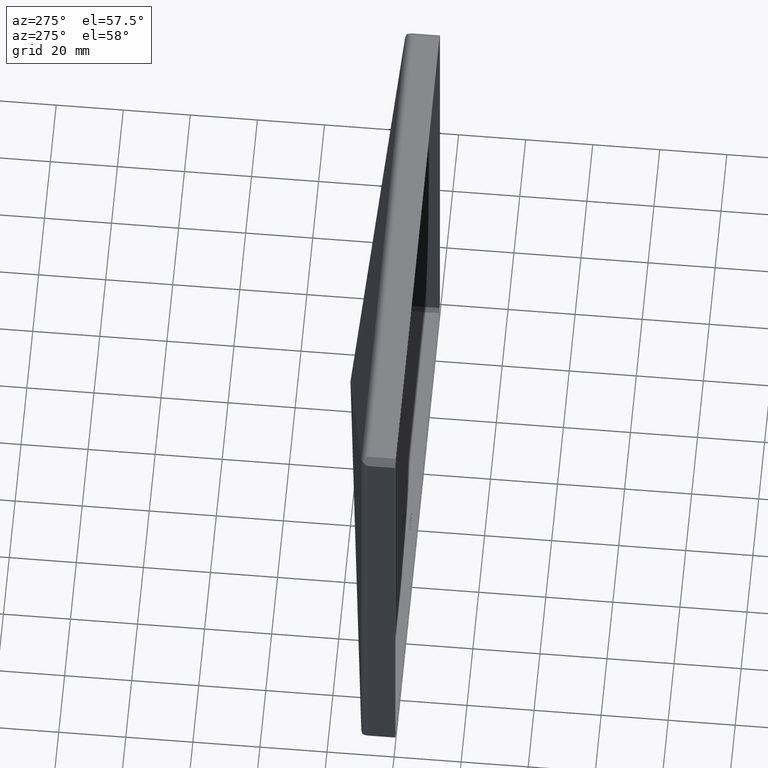
[diagram: clean part render]
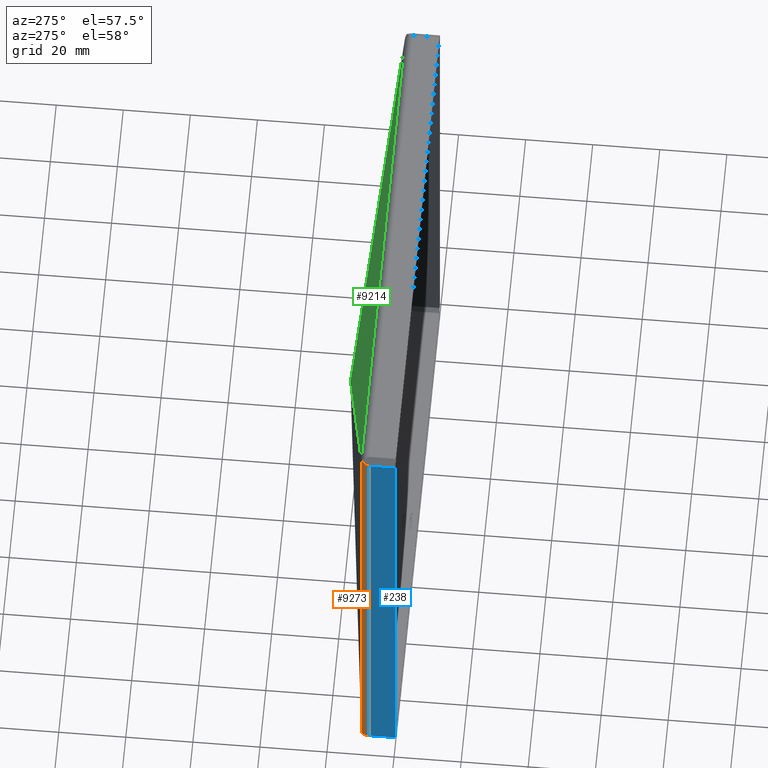
[diagram: same view with three faces highlighted in distinct colors, each labeled with its STEP entity id]
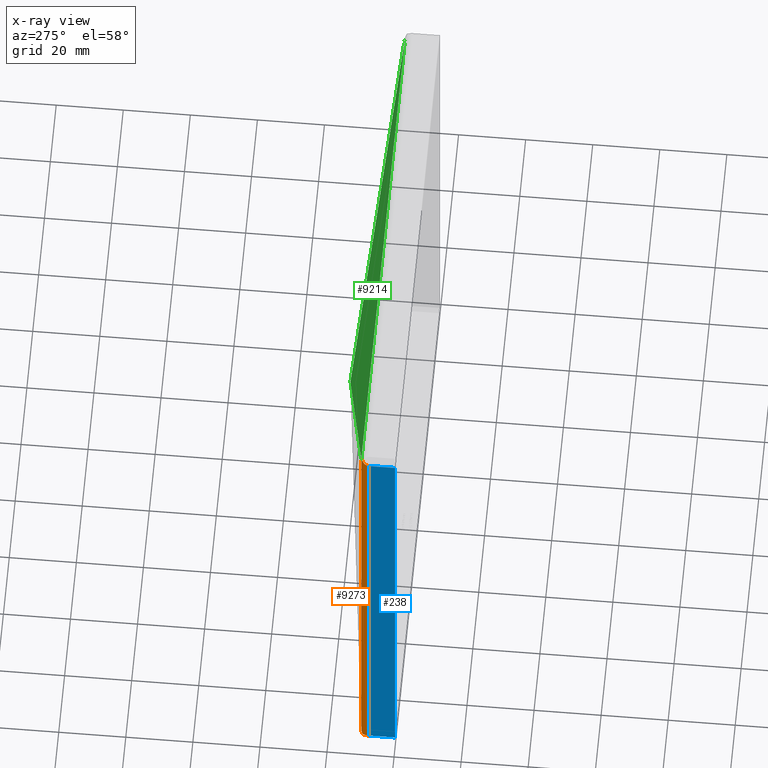
[diagram: x-ray of the same camera — body ghosted, the three highlighted faces saturated]
A machine part, auxiliary view with three faces highlighted in distinct colors.
The next image is the same camera in x-ray (body ghosted, the three faces saturated) — at least one of them is partly hidden behind the body in this view.
Their STEP definitions:

[orange] entity #9273 — the highlighted cylindrical surface (edge-blend (fillet) strip) has radius 2.5 mm, axis along (-0, -0, 1).
#93 = CARTESIAN_POINT ( 'NONE',  ( -74.32406770863393319, 10.28445979619672812, -74.32406770863390477 ) ) ;
#242 = EDGE_CURVE ( 'NONE', #6952, #11896, #12134, .T. ) ;
#368 = VERTEX_POINT ( 'NONE', #4301 ) ;
#616 = EDGE_LOOP ( 'NONE', ( #12392, #3462, #2772, #9991, #5174, #6391 ) ) ;
#671 = CARTESIAN_POINT ( 'NONE',  ( -75.49999999999998579, 9.805552754732556053, 75.49999999999998579 ) ) ;
#893 = CARTESIAN_POINT ( 'NONE',  ( -76.49999999999997158, 7.805552754732537402, 74.50000000000001421 ) ) ;
#1030 = CARTESIAN_POINT ( 'NONE',  ( -76.50000000000000000, 7.805552754732537402, -74.49999999999998579 ) ) ;
#1303 = CARTESIAN_POINT ( 'NONE',  ( -74.00000000000001421, 7.805552754732534737, -76.50000000000001421 ) ) ;
#1334 = EDGE_CURVE ( 'NONE', #8225, #11136, #6114, .T. ) ;
#1378 = DIRECTION ( 'NONE',  ( -0.000000000000000000, -0.000000000000000000, 1.000000000000000000 ) ) ;
#1476 = CARTESIAN_POINT ( 'NONE',  ( -74.32406770863386214, 10.28445979619673878, 74.32406770863393319 ) ) ;
#2100 = DIRECTION ( 'NONE',  ( 1.000000000000000000, 0.000000000000000000, 0.000000000000000000 ) ) ;
#2248 =( BOUNDED_CURVE ( )  B_SPLINE_CURVE ( 3, ( #10420, #5573, #11447, #12344 ),
 .UNSPECIFIED., .F., .F. ) 
 B_SPLINE_CURVE_WITH_KNOTS ( ( 4, 4 ),
 ( 5.355890089177973046, 6.283185307179585344 ),
 .UNSPECIFIED. ) 
 CURVE ( )  GEOMETRIC_REPRESENTATION_ITEM ( )  RATIONAL_B_SPLINE_CURVE ( ( 1.000000000000000000, 0.9296181273332770889, 0.9296181273332770889, 1.000000000000000000 ) ) 
 REPRESENTATION_ITEM ( '' )  );
#2368 = CARTESIAN_POINT ( 'NONE',  ( -76.49999999999997158, 7.805552754732537402, 74.50000000000001421 ) ) ;
#2508 = CARTESIAN_POINT ( 'NONE',  ( -75.15384533243225462, 10.06516875540834022, 75.15384533243225462 ) ) ;
#2571 = VECTOR ( 'NONE', #1378, 1000.000000000000000 ) ;
#2772 = ORIENTED_EDGE ( 'NONE', *, *, #12725, .T. ) ;
#3224 = CARTESIAN_POINT ( 'NONE',  ( -75.49999999999998579, 9.805552754732556053, 75.49999999999998579 ) ) ;
#3378 = VECTOR ( 'NONE', #7431, 1000.000000000000000 ) ;
#3462 = ORIENTED_EDGE ( 'NONE', *, *, #9546, .T. ) ;
#4301 = CARTESIAN_POINT ( 'NONE',  ( -74.32406770863386214, 10.28445979619673878, 74.32406770863393319 ) ) ;
#4540 = CARTESIAN_POINT ( 'NONE',  ( -75.50000000000001421, 9.805552754732531184, -75.49999999999998579 ) ) ;
#4768 = FACE_OUTER_BOUND ( 'NONE', #616, .T. ) ;
#4869 = CARTESIAN_POINT ( 'NONE',  ( -76.14142982636370505, 9.324480384959766610, 74.85857017363622390 ) ) ;
#5174 = ORIENTED_EDGE ( 'NONE', *, *, #7225, .F. ) ;
#5474 = VERTEX_POINT ( 'NONE', #1030 ) ;
#5573 = CARTESIAN_POINT ( 'NONE',  ( -76.14142982636371926, 9.324480384959745294, -74.85857017363626653 ) ) ;
#6114 =( BOUNDED_CURVE ( )  B_SPLINE_CURVE ( 3, ( #7090, #8088, #9964, #9823 ),
 .UNSPECIFIED., .F., .F. ) 
 B_SPLINE_CURVE_WITH_KNOTS ( ( 4, 4 ),
 ( 4.068887871591403638, 4.582396099620396512 ),
 .UNSPECIFIED. ) 
 CURVE ( )  GEOMETRIC_REPRESENTATION_ITEM ( )  RATIONAL_B_SPLINE_CURVE ( ( 1.000000000000000000, 0.9781462266667722005, 0.9781462266667722005, 1.000000000000000000 ) ) 
 REPRESENTATION_ITEM ( '' )  );
#6258 = DIRECTION ( 'NONE',  ( -0.000000000000000000, -0.000000000000000000, 1.000000000000000000 ) ) ;
#6334 = LINE ( 'NONE', #12072, #2571 ) ;
#6391 = ORIENTED_EDGE ( 'NONE', *, *, #10580, .F. ) ;
#6952 = VERTEX_POINT ( 'NONE', #2368 ) ;
#7090 = CARTESIAN_POINT ( 'NONE',  ( -75.50000000000001421, 9.805552754732531184, -75.49999999999998579 ) ) ;
#7225 = EDGE_CURVE ( 'NONE', #368, #11896, #12758, .T. ) ;
#7275 = CYLINDRICAL_SURFACE ( 'NONE', #11719, 2.499999999999988454 ) ;
#7431 = DIRECTION ( 'NONE',  ( -0.000000000000000000, -0.000000000000000000, 1.000000000000000000 ) ) ;
#7472 = CARTESIAN_POINT ( 'NONE',  ( -74.75311033006856576, 10.22837102122093889, 74.75311033006856576 ) ) ;
#8088 = CARTESIAN_POINT ( 'NONE',  ( -75.15384533243229725, 10.06516875540831535, -75.15384533243226883 ) ) ;
#8225 = VERTEX_POINT ( 'NONE', #4540 ) ;
#9111 = LINE ( 'NONE', #9385, #3378 ) ;
#9273 = ADVANCED_FACE ( 'NONE', ( #4768 ), #7275, .T. ) ;
#9385 = CARTESIAN_POINT ( 'NONE',  ( -76.50000000000000000, 7.805552754732534737, -76.50000000000001421 ) ) ;
#9546 = EDGE_CURVE ( 'NONE', #8225, #5474, #2248, .T. ) ;
#9688 = CARTESIAN_POINT ( 'NONE',  ( -76.50000000000001421, 8.607340037687187362, 74.49999999999997158 ) ) ;
#9823 = CARTESIAN_POINT ( 'NONE',  ( -74.32406770863393319, 10.28445979619672812, -74.32406770863390477 ) ) ;
#9964 = CARTESIAN_POINT ( 'NONE',  ( -74.75311033006860839, 10.22837102122091935, -74.75311033006857997 ) ) ;
#9991 = ORIENTED_EDGE ( 'NONE', *, *, #242, .T. ) ;
#10420 = CARTESIAN_POINT ( 'NONE',  ( -75.50000000000001421, 9.805552754732531184, -75.49999999999998579 ) ) ;
#10580 = EDGE_CURVE ( 'NONE', #11136, #368, #6334, .T. ) ;
#10804 = CARTESIAN_POINT ( 'NONE',  ( -75.49999999999998579, 9.805552754732556053, 75.49999999999998579 ) ) ;
#11136 = VERTEX_POINT ( 'NONE', #93 ) ;
#11447 = CARTESIAN_POINT ( 'NONE',  ( -76.50000000000000000, 8.607340037687174927, -74.50000000000000000 ) ) ;
#11719 = AXIS2_PLACEMENT_3D ( 'NONE', #1303, #6258, #2100 ) ;
#11896 = VERTEX_POINT ( 'NONE', #3224 ) ;
#12072 = CARTESIAN_POINT ( 'NONE',  ( -74.32406770863393319, 10.28445979619672812, -76.50000000000001421 ) ) ;
#12134 =( BOUNDED_CURVE ( )  B_SPLINE_CURVE ( 3, ( #893, #9688, #4869, #10804 ),
 .UNSPECIFIED., .F., .T. ) 
 B_SPLINE_CURVE_WITH_KNOTS ( ( 4, 4 ),
 ( 3.141592653589794004, 4.068887871591419625 ),
 .UNSPECIFIED. ) 
 CURVE ( )  GEOMETRIC_REPRESENTATION_ITEM ( )  RATIONAL_B_SPLINE_CURVE ( ( 1.000000000000000000, 0.9296181273332752015, 0.9296181273332752015, 1.000000000000000000 ) ) 
 REPRESENTATION_ITEM ( '' )  );
#12344 = CARTESIAN_POINT ( 'NONE',  ( -76.50000000000000000, 7.805552754732537402, -74.49999999999998579 ) ) ;
#12392 = ORIENTED_EDGE ( 'NONE', *, *, #1334, .F. ) ;
#12725 = EDGE_CURVE ( 'NONE', #5474, #6952, #9111, .T. ) ;
#12758 =( BOUNDED_CURVE ( )  B_SPLINE_CURVE ( 3, ( #1476, #7472, #2508, #671 ),
 .UNSPECIFIED., .F., .T. ) 
 B_SPLINE_CURVE_WITH_KNOTS ( ( 4, 4 ),
 ( 4.842381861148968625, 5.355890089177959723 ),
 .UNSPECIFIED. ) 
 CURVE ( )  GEOMETRIC_REPRESENTATION_ITEM ( )  RATIONAL_B_SPLINE_CURVE ( ( 1.000000000000000000, 0.9781462266667722005, 0.9781462266667722005, 1.000000000000000000 ) ) 
 REPRESENTATION_ITEM ( '' )  );

[blue] entity #238 — the highlighted planar face has unit normal (1, 0, -0).
#238 = ADVANCED_FACE ( 'NONE', ( #3678 ), #12691, .F. ) ;
#279 = ORIENTED_EDGE ( 'NONE', *, *, #12725, .F. ) ;
#793 = CARTESIAN_POINT ( 'NONE',  ( -76.50000000000000000, -0.000000000000000000, -74.49999999999998579 ) ) ;
#1030 = CARTESIAN_POINT ( 'NONE',  ( -76.50000000000000000, 7.805552754732537402, -74.49999999999998579 ) ) ;
#1423 = EDGE_CURVE ( 'NONE', #8703, #1856, #9015, .T. ) ;
#1856 = VERTEX_POINT ( 'NONE', #4847 ) ;
#2338 = CARTESIAN_POINT ( 'NONE',  ( -76.50000000000001421, 0.000000000000000000, -76.50000000000001421 ) ) ;
#2368 = CARTESIAN_POINT ( 'NONE',  ( -76.49999999999997158, 7.805552754732537402, 74.50000000000001421 ) ) ;
#3150 = DIRECTION ( 'NONE',  ( 9.070449547591148029E-17, 0.000000000000000000, 1.000000000000000000 ) ) ;
#3378 = VECTOR ( 'NONE', #7431, 1000.000000000000000 ) ;
#3678 = FACE_OUTER_BOUND ( 'NONE', #6236, .T. ) ;
#3777 = DIRECTION ( 'NONE',  ( -9.070449547591148029E-17, 0.000000000000000000, -1.000000000000000000 ) ) ;
#4824 = CARTESIAN_POINT ( 'NONE',  ( -76.50000000000001421, 25.00000000000000000, -76.50000000000001421 ) ) ;
#4847 = CARTESIAN_POINT ( 'NONE',  ( -76.49999999999997158, 0.000000000000000000, 74.50000000000001421 ) ) ;
#4856 = DIRECTION ( 'NONE',  ( -0.000000000000000000, -1.000000000000000000, -0.000000000000000000 ) ) ;
#5073 = LINE ( 'NONE', #7240, #7092 ) ;
#5474 = VERTEX_POINT ( 'NONE', #1030 ) ;
#5558 = ORIENTED_EDGE ( 'NONE', *, *, #10751, .F. ) ;
#5628 = VECTOR ( 'NONE', #3150, 1000.000000000000000 ) ;
#6236 = EDGE_LOOP ( 'NONE', ( #279, #9534, #7443, #5558 ) ) ;
#6952 = VERTEX_POINT ( 'NONE', #2368 ) ;
#7092 = VECTOR ( 'NONE', #12111, 1000.000000000000000 ) ;
#7240 = CARTESIAN_POINT ( 'NONE',  ( -76.49999999999997158, 20.00000000000000711, 74.50000000000001421 ) ) ;
#7431 = DIRECTION ( 'NONE',  ( -0.000000000000000000, -0.000000000000000000, 1.000000000000000000 ) ) ;
#7443 = ORIENTED_EDGE ( 'NONE', *, *, #1423, .T. ) ;
#7751 = LINE ( 'NONE', #9544, #8201 ) ;
#8036 = AXIS2_PLACEMENT_3D ( 'NONE', #4824, #9816, #3777 ) ;
#8201 = VECTOR ( 'NONE', #4856, 1000.000000000000000 ) ;
#8703 = VERTEX_POINT ( 'NONE', #793 ) ;
#9015 = LINE ( 'NONE', #2338, #5628 ) ;
#9111 = LINE ( 'NONE', #9385, #3378 ) ;
#9385 = CARTESIAN_POINT ( 'NONE',  ( -76.50000000000000000, 7.805552754732534737, -76.50000000000001421 ) ) ;
#9534 = ORIENTED_EDGE ( 'NONE', *, *, #12157, .T. ) ;
#9544 = CARTESIAN_POINT ( 'NONE',  ( -76.50000000000000000, 20.00000000000000711, -74.49999999999998579 ) ) ;
#9816 = DIRECTION ( 'NONE',  ( 1.000000000000000000, 0.000000000000000000, -9.070449547591148029E-17 ) ) ;
#10751 = EDGE_CURVE ( 'NONE', #6952, #1856, #5073, .T. ) ;
#12111 = DIRECTION ( 'NONE',  ( -0.000000000000000000, -1.000000000000000000, -0.000000000000000000 ) ) ;
#12157 = EDGE_CURVE ( 'NONE', #5474, #8703, #7751, .T. ) ;
#12691 = PLANE ( 'NONE',  #8036 ) ;
#12725 = EDGE_CURVE ( 'NONE', #5474, #6952, #9111, .T. ) ;

[green] entity #9214 — the highlighted planar face has unit normal (0, 0.9916, 0.1296).
#333 = VERTEX_POINT ( 'NONE', #7949 ) ;
#368 = VERTEX_POINT ( 'NONE', #4301 ) ;
#1126 = EDGE_CURVE ( 'NONE', #9577, #368, #2041, .T. ) ;
#1264 = DIRECTION ( 'NONE',  ( 0.000000000000000000, -0.1296270834535713790, 0.9915628165856769094 ) ) ;
#1625 = CARTESIAN_POINT ( 'NONE',  ( 0.4490169378204289519, 20.05955091641665433, -0.4490169378204289519 ) ) ;
#1716 = VERTEX_POINT ( 'NONE', #7212 ) ;
#1996 = EDGE_CURVE ( 'NONE', #1716, #333, #10229, .T. ) ;
#2041 = LINE ( 'NONE', #1625, #4072 ) ;
#2385 = DIRECTION ( 'NONE',  ( 1.000000000000000000, -0.000000000000000000, -4.440892098500625669E-16 ) ) ;
#2584 = DIRECTION ( 'NONE',  ( 1.000000000000000000, -0.000000000000000000, -4.440892098500625669E-16 ) ) ;
#2792 = VECTOR ( 'NONE', #2584, 1000.000000000000000 ) ;
#3018 = CARTESIAN_POINT ( 'NONE',  ( -76.50000000000005684, 10.28445979619673878, 74.32406770863393319 ) ) ;
#4072 = VECTOR ( 'NONE', #4563, 1000.000000000000000 ) ;
#4301 = CARTESIAN_POINT ( 'NONE',  ( -74.32406770863386214, 10.28445979619673878, 74.32406770863393319 ) ) ;
#4563 = DIRECTION ( 'NONE',  ( -0.7041048305583798017, -0.09204767877957999167, 0.7041048305583811340 ) ) ;
#4667 = VECTOR ( 'NONE', #5109, 1000.000000000000114 ) ;
#5109 = DIRECTION ( 'NONE',  ( -0.7041048305583805789, 0.09204767877957995004, -0.7041048305583803568 ) ) ;
#5416 = VECTOR ( 'NONE', #2385, 1000.000000000000000 ) ;
#6224 = EDGE_CURVE ( 'NONE', #9577, #333, #7777, .T. ) ;
#6713 = ORIENTED_EDGE ( 'NONE', *, *, #12652, .T. ) ;
#7064 = PLANE ( 'NONE',  #11367 ) ;
#7184 = ORIENTED_EDGE ( 'NONE', *, *, #6224, .F. ) ;
#7212 = CARTESIAN_POINT ( 'NONE',  ( 74.32406770863393319, 10.28445979619673878, 74.32406770863386214 ) ) ;
#7543 = CARTESIAN_POINT ( 'NONE',  ( -76.50000000000007105, 19.99915628165857484, 0.01296270834539186255 ) ) ;
#7777 = LINE ( 'NONE', #7543, #2792 ) ;
#7949 = CARTESIAN_POINT ( 'NONE',  ( 0.01296270834533208571, 19.99915628165857484, 0.01296270834535788452 ) ) ;
#9160 = CARTESIAN_POINT ( 'NONE',  ( -37.91938008056752096, 24.95805437872434496, -37.91938008056752096 ) ) ;
#9214 = ADVANCED_FACE ( 'NONE', ( #9554 ), #7064, .T. ) ;
#9554 = FACE_OUTER_BOUND ( 'NONE', #11830, .T. ) ;
#9577 = VERTEX_POINT ( 'NONE', #12294 ) ;
#10229 = LINE ( 'NONE', #9160, #4667 ) ;
#11001 = CARTESIAN_POINT ( 'NONE',  ( -76.50000000000007105, 19.99915628165857484, 0.01296270834539186255 ) ) ;
#11367 = AXIS2_PLACEMENT_3D ( 'NONE', #11001, #11978, #1264 ) ;
#11417 = ORIENTED_EDGE ( 'NONE', *, *, #1126, .T. ) ;
#11700 = LINE ( 'NONE', #3018, #5416 ) ;
#11830 = EDGE_LOOP ( 'NONE', ( #12215, #7184, #11417, #6713 ) ) ;
#11978 = DIRECTION ( 'NONE',  ( 5.756598906606463959E-17, 0.9915628165856770204, 0.1296270834535714067 ) ) ;
#12215 = ORIENTED_EDGE ( 'NONE', *, *, #1996, .T. ) ;
#12294 = CARTESIAN_POINT ( 'NONE',  ( -0.01296270834535816381, 19.99915628165857484, 0.01296270834535957067 ) ) ;
#12652 = EDGE_CURVE ( 'NONE', #368, #1716, #11700, .T. ) ;